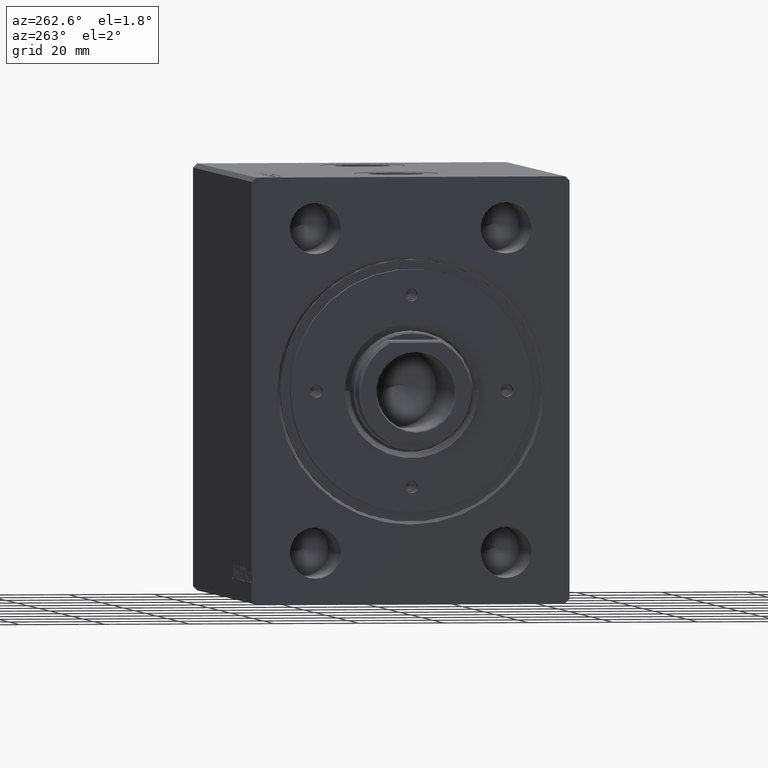
[diagram: clean part render]
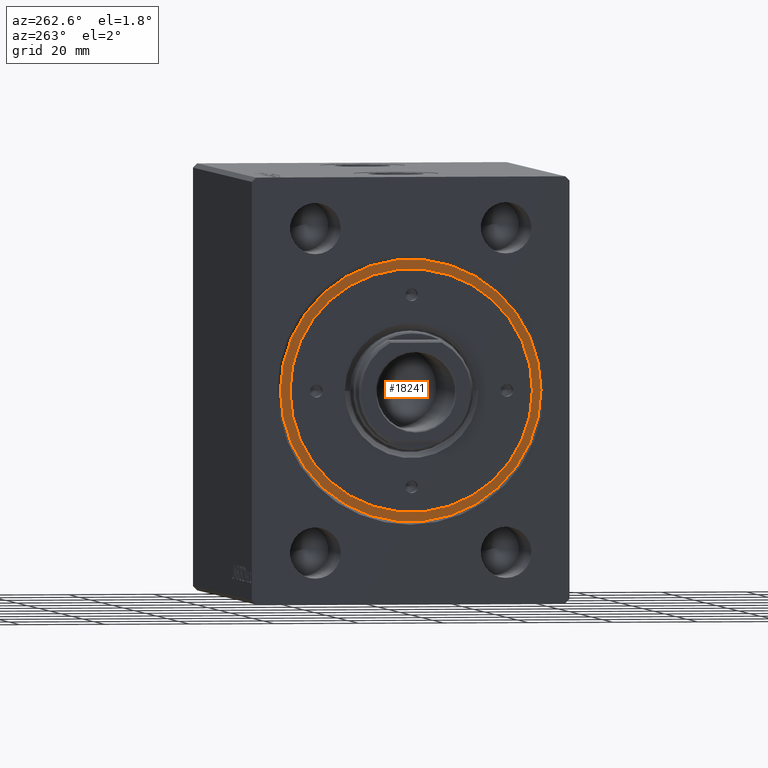
[diagram: same view with one face highlighted and labeled with its STEP entity id]
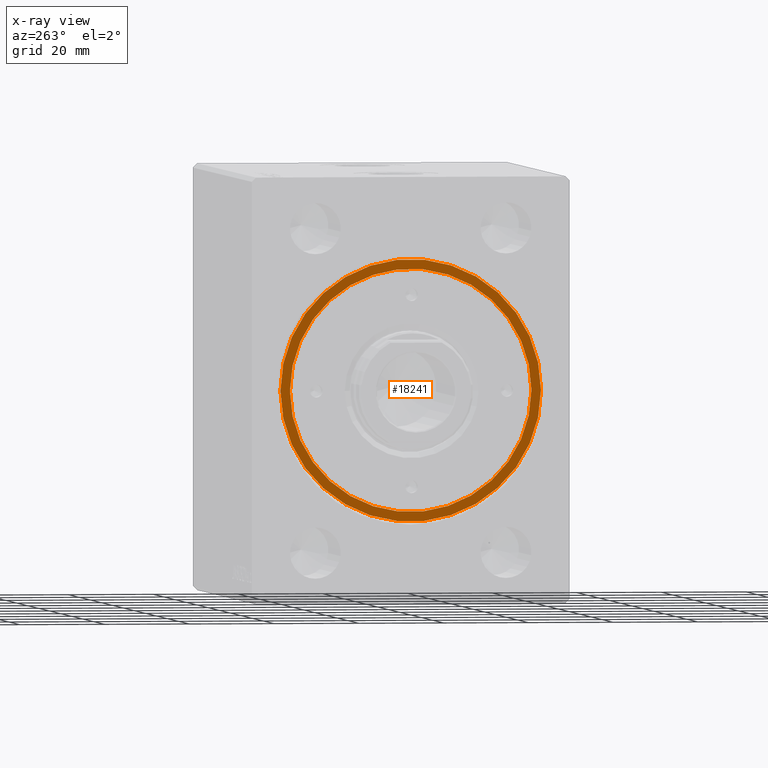
[diagram: x-ray of the same camera — body ghosted, the highlighted face saturated]
A machine part, auxiliary view. The second image highlights one B-rep face of the part: STEP entity #18241.
The next image is the same camera in x-ray: the body ghosted, the highlighted face saturated — about 0% of this face is hidden behind the body in this view.
In plain terms, the highlighted planar face has unit normal (-1, 0, 0).
Its self-contained STEP definition (entity closure, byte-faithful):
#612 = EDGE_LOOP ( 'NONE', ( #3611, #17269 ) ) ;
#1355 = EDGE_CURVE ( 'NONE', #19714, #37598, #23387, .T. ) ;
#2095 = CIRCLE ( 'NONE', #25522, 30.75000000000000355 ) ;
#3164 = ORIENTED_EDGE ( 'NONE', *, *, #1355, .T. ) ;
#3385 = DIRECTION ( 'NONE',  ( 0.000000000000000000, 0.000000000000000000, 1.000000000000000000 ) ) ;
#3611 = ORIENTED_EDGE ( 'NONE', *, *, #39987, .F. ) ;
#4265 = AXIS2_PLACEMENT_3D ( 'NONE', #17173, #3385, #6733 ) ;
#4937 = CARTESIAN_POINT ( 'NONE',  ( -30.75000000000000355, 0.000000000000000000, 8.199999999999999289 ) ) ;
#5968 = CARTESIAN_POINT ( 'NONE',  ( -28.50000000000000000, 0.000000000000000000, 8.199999999999999289 ) ) ;
#6051 = EDGE_LOOP ( 'NONE', ( #7275, #3164 ) ) ;
#6733 = DIRECTION ( 'NONE',  ( 1.000000000000000000, 0.000000000000000000, 0.000000000000000000 ) ) ;
#7175 = DIRECTION ( 'NONE',  ( 1.000000000000000000, 0.000000000000000000, -0.000000000000000000 ) ) ;
#7275 = ORIENTED_EDGE ( 'NONE', *, *, #38923, .T. ) ;
#10496 = DIRECTION ( 'NONE',  ( 0.000000000000000000, 0.000000000000000000, 1.000000000000000000 ) ) ;
#12036 = CARTESIAN_POINT ( 'NONE',  ( 30.75000000000000355, 3.765788907378111328E-15, 8.199999999999999289 ) ) ;
#12659 = CARTESIAN_POINT ( 'NONE',  ( 0.000000000000000000, 0.000000000000000000, 8.199999999999999289 ) ) ;
#15274 = CIRCLE ( 'NONE', #20955, 28.50000000000000000 ) ;
#16743 = FACE_OUTER_BOUND ( 'NONE', #6051, .T. ) ;
#17173 = CARTESIAN_POINT ( 'NONE',  ( 0.000000000000000000, 0.000000000000000000, 8.199999999999999289 ) ) ;
#17269 = ORIENTED_EDGE ( 'NONE', *, *, #25924, .F. ) ;
#18241 = ADVANCED_FACE ( 'NONE', ( #26968, #16743 ), #30299, .T. ) ;
#19714 = VERTEX_POINT ( 'NONE', #12036 ) ;
#20955 = AXIS2_PLACEMENT_3D ( 'NONE', #36631, #42880, #26613 ) ;
#22271 = DIRECTION ( 'NONE',  ( 0.000000000000000000, 0.000000000000000000, 1.000000000000000000 ) ) ;
#23387 = CIRCLE ( 'NONE', #41879, 30.75000000000000355 ) ;
#25522 = AXIS2_PLACEMENT_3D ( 'NONE', #12659, #26222, #33350 ) ;
#25829 = DIRECTION ( 'NONE',  ( 1.000000000000000000, 0.000000000000000000, 0.000000000000000000 ) ) ;
#25924 = EDGE_CURVE ( 'NONE', #36928, #35937, #15274, .T. ) ;
#26222 = DIRECTION ( 'NONE',  ( 0.000000000000000000, 0.000000000000000000, 1.000000000000000000 ) ) ;
#26613 = DIRECTION ( 'NONE',  ( 1.000000000000000000, 0.000000000000000000, 0.000000000000000000 ) ) ;
#26968 = FACE_BOUND ( 'NONE', #612, .T. ) ;
#30299 = PLANE ( 'NONE',  #32234 ) ;
#32234 = AXIS2_PLACEMENT_3D ( 'NONE', #43884, #10496, #7175 ) ;
#33350 = DIRECTION ( 'NONE',  ( 1.000000000000000000, 0.000000000000000000, 0.000000000000000000 ) ) ;
#35937 = VERTEX_POINT ( 'NONE', #5968 ) ;
#36631 = CARTESIAN_POINT ( 'NONE',  ( 0.000000000000000000, 0.000000000000000000, 8.199999999999999289 ) ) ;
#36928 = VERTEX_POINT ( 'NONE', #39510 ) ;
#37598 = VERTEX_POINT ( 'NONE', #4937 ) ;
#37661 = CIRCLE ( 'NONE', #4265, 28.50000000000000000 ) ;
#38529 = CARTESIAN_POINT ( 'NONE',  ( 0.000000000000000000, 0.000000000000000000, 8.199999999999999289 ) ) ;
#38923 = EDGE_CURVE ( 'NONE', #37598, #19714, #2095, .T. ) ;
#39510 = CARTESIAN_POINT ( 'NONE',  ( 28.50000000000000000, 3.490243377569956456E-15, 8.199999999999999289 ) ) ;
#39987 = EDGE_CURVE ( 'NONE', #35937, #36928, #37661, .T. ) ;
#41879 = AXIS2_PLACEMENT_3D ( 'NONE', #38529, #22271, #25829 ) ;
#42880 = DIRECTION ( 'NONE',  ( 0.000000000000000000, 0.000000000000000000, 1.000000000000000000 ) ) ;
#43884 = CARTESIAN_POINT ( 'NONE',  ( 0.000000000000000000, 0.000000000000000000, 8.199999999999999289 ) ) ;